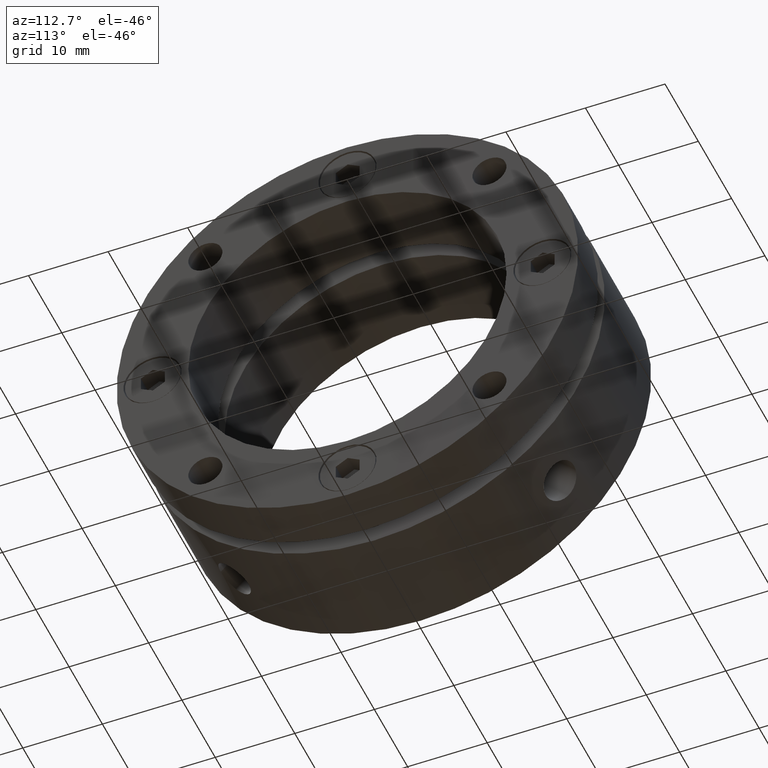
[diagram: clean part render]
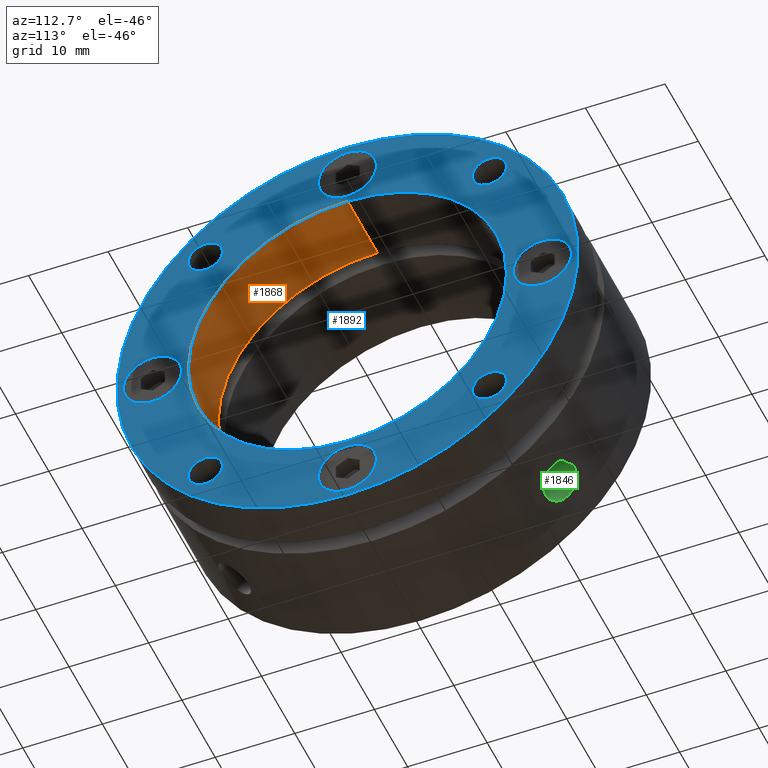
[diagram: same view with three faces highlighted in distinct colors, each labeled with its STEP entity id]
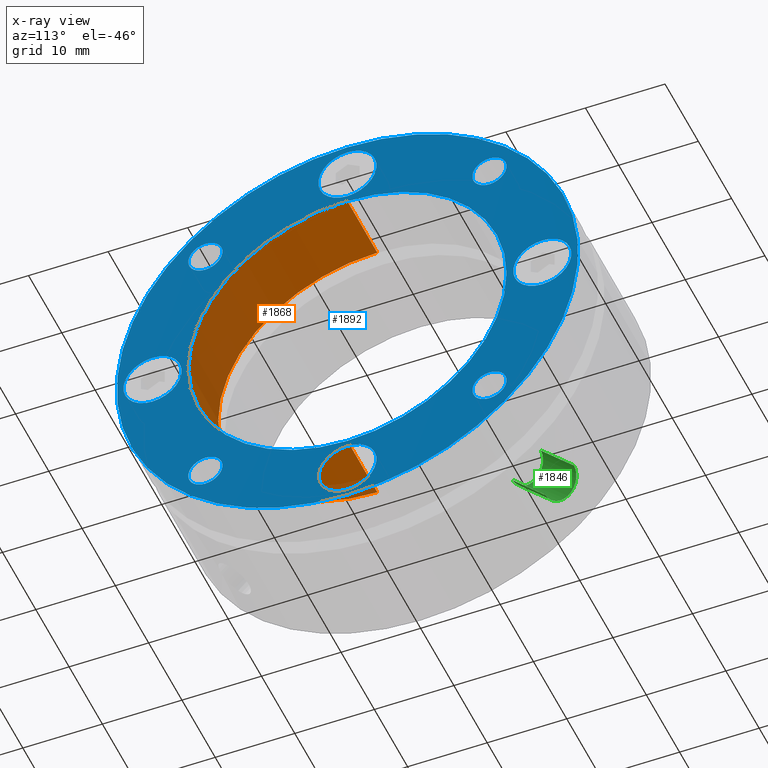
[diagram: x-ray of the same camera — body ghosted, the three highlighted faces saturated]
A machine part, auxiliary view with three faces highlighted in distinct colors.
The next image is the same camera in x-ray (body ghosted, the three faces saturated) — at least one of them is partly hidden behind the body in this view.
Their STEP definitions:

[orange] entity #1868 — the highlighted cylindrical surface (partial cylindrical patch) has radius 20 mm, axis along (1, 0, 0).
#292 = EDGE_LOOP ( 'NONE', ( #865, #846, #847, #960 ) ) ;
#373 = VERTEX_POINT ( 'NONE', #1982 ) ;
#374 = VERTEX_POINT ( 'NONE', #1983 ) ;
#378 = VERTEX_POINT ( 'NONE', #1987 ) ;
#379 = VERTEX_POINT ( 'NONE', #1988 ) ;
#688 = CIRCLE ( 'NONE', #3167, 20.00000000000000000 ) ;
#694 = CIRCLE ( 'NONE', #3169, 20.00000000000000000 ) ;
#696 = LINE ( 'NONE', #2439, #699 ) ;
#698 = LINE ( 'NONE', #2441, #701 ) ;
#699 = VECTOR ( 'NONE', #2440, 1000.000000000000000 ) ;
#701 = VECTOR ( 'NONE', #2443, 1000.000000000000000 ) ;
#846 = ORIENTED_EDGE ( 'NONE', *, *, #1012, .T. ) ;
#847 = ORIENTED_EDGE ( 'NONE', *, *, #1014, .F. ) ;
#865 = ORIENTED_EDGE ( 'NONE', *, *, #1008, .T. ) ;
#960 = ORIENTED_EDGE ( 'NONE', *, *, #1013, .F. ) ;
#1008 = EDGE_CURVE ( 'NONE', #379, #378, #688, .T. ) ;
#1012 = EDGE_CURVE ( 'NONE', #378, #373, #696, .T. ) ;
#1013 = EDGE_CURVE ( 'NONE', #379, #374, #698, .T. ) ;
#1014 = EDGE_CURVE ( 'NONE', #374, #373, #694, .T. ) ;
#1099 = AXIS2_PLACEMENT_3D ( 'NONE', #2674, #2672, #2670 ) ;
#1327 = FACE_OUTER_BOUND ( 'NONE', #292, .T. ) ;
#1336 = CYLINDRICAL_SURFACE ( 'NONE', #1099, 20.00000000000000000 ) ;
#1868 = ADVANCED_FACE ( 'NONE', ( #1327 ), #1336, .F. ) ;
#1982 = CARTESIAN_POINT ( 'NONE',  ( 21.99999999999999300, 2.449293598294706500E-015, 20.00000000000000000 ) ) ;
#1983 = CARTESIAN_POINT ( 'NONE',  ( 21.99999999999999300, 0.0000000000000000000, -20.00000000000000000 ) ) ;
#1987 = CARTESIAN_POINT ( 'NONE',  ( 13.00000000000001100, 2.449293598294706500E-015, 20.00000000000000000 ) ) ;
#1988 = CARTESIAN_POINT ( 'NONE',  ( 13.00000000000001100, 0.0000000000000000000, -20.00000000000000000 ) ) ;
#2433 = CARTESIAN_POINT ( 'NONE',  ( 13.00000000000001100, 0.0000000000000000000, 0.0000000000000000000 ) ) ;
#2434 = DIRECTION ( 'NONE',  ( -1.000000000000000000, -0.0000000000000000000, -0.0000000000000000000 ) ) ;
#2435 = DIRECTION ( 'NONE',  ( 0.0000000000000000000, 0.0000000000000000000, -1.000000000000000000 ) ) ;
#2439 = CARTESIAN_POINT ( 'NONE',  ( 10.99999999999999500, 2.449293598294706500E-015, 20.00000000000000000 ) ) ;
#2440 = DIRECTION ( 'NONE',  ( 1.000000000000000000, 0.0000000000000000000, 0.0000000000000000000 ) ) ;
#2441 = CARTESIAN_POINT ( 'NONE',  ( 10.99999999999999500, 0.0000000000000000000, -20.00000000000000000 ) ) ;
#2443 = DIRECTION ( 'NONE',  ( 1.000000000000000000, 0.0000000000000000000, 0.0000000000000000000 ) ) ;
#2445 = CARTESIAN_POINT ( 'NONE',  ( 21.99999999999999300, 0.0000000000000000000, 0.0000000000000000000 ) ) ;
#2446 = DIRECTION ( 'NONE',  ( -1.000000000000000000, -0.0000000000000000000, -0.0000000000000000000 ) ) ;
#2447 = DIRECTION ( 'NONE',  ( 0.0000000000000000000, 0.0000000000000000000, -1.000000000000000000 ) ) ;
#2670 = DIRECTION ( 'NONE',  ( 0.0000000000000000000, 0.0000000000000000000, -1.000000000000000000 ) ) ;
#2672 = DIRECTION ( 'NONE',  ( 1.000000000000000000, 0.0000000000000000000, 0.0000000000000000000 ) ) ;
#2674 = CARTESIAN_POINT ( 'NONE',  ( 10.99999999999999500, 0.0000000000000000000, 0.0000000000000000000 ) ) ;
#3167 = AXIS2_PLACEMENT_3D ( 'NONE', #2433, #2434, #2435 ) ;
#3169 = AXIS2_PLACEMENT_3D ( 'NONE', #2445, #2446, #2447 ) ;

[blue] entity #1892 — the highlighted planar face has unit normal (1, 0, 0).
#21 = EDGE_LOOP ( 'NONE', ( #910, #923 ) ) ;
#28 = EDGE_LOOP ( 'NONE', ( #925, #928 ) ) ;
#56 = EDGE_LOOP ( 'NONE', ( #933, #930 ) ) ;
#75 = EDGE_LOOP ( 'NONE', ( #924, #927 ) ) ;
#81 = EDGE_LOOP ( 'NONE', ( #920, #926 ) ) ;
#92 = EDGE_LOOP ( 'NONE', ( #918, #919 ) ) ;
#96 = EDGE_LOOP ( 'NONE', ( #929, #934 ) ) ;
#160 = EDGE_LOOP ( 'NONE', ( #861, #916 ) ) ;
#235 = EDGE_LOOP ( 'NONE', ( #945, #951 ) ) ;
#316 = EDGE_LOOP ( 'NONE', ( #912, #911 ) ) ;
#341 = VERTEX_POINT ( 'NONE', #1953 ) ;
#342 = VERTEX_POINT ( 'NONE', #1945 ) ;
#345 = VERTEX_POINT ( 'NONE', #1955 ) ;
#346 = VERTEX_POINT ( 'NONE', #1948 ) ;
#349 = VERTEX_POINT ( 'NONE', #1958 ) ;
#350 = VERTEX_POINT ( 'NONE', #1959 ) ;
#353 = VERTEX_POINT ( 'NONE', #1962 ) ;
#354 = VERTEX_POINT ( 'NONE', #1963 ) ;
#357 = VERTEX_POINT ( 'NONE', #1966 ) ;
#358 = VERTEX_POINT ( 'NONE', #1967 ) ;
#361 = VERTEX_POINT ( 'NONE', #1970 ) ;
#362 = VERTEX_POINT ( 'NONE', #1971 ) ;
#365 = VERTEX_POINT ( 'NONE', #1974 ) ;
#366 = VERTEX_POINT ( 'NONE', #1975 ) ;
#369 = VERTEX_POINT ( 'NONE', #1978 ) ;
#370 = VERTEX_POINT ( 'NONE', #1979 ) ;
#373 = VERTEX_POINT ( 'NONE', #1982 ) ;
#374 = VERTEX_POINT ( 'NONE', #1983 ) ;
#376 = VERTEX_POINT ( 'NONE', #1985 ) ;
#377 = VERTEX_POINT ( 'NONE', #1986 ) ;
#526 = AXIS2_PLACEMENT_3D ( 'NONE', #2873, #2874, #2875 ) ;
#527 = AXIS2_PLACEMENT_3D ( 'NONE', #2876, #2877, #2878 ) ;
#529 = AXIS2_PLACEMENT_3D ( 'NONE', #2882, #2883, #2884 ) ;
#531 = AXIS2_PLACEMENT_3D ( 'NONE', #2888, #2889, #2890 ) ;
#533 = AXIS2_PLACEMENT_3D ( 'NONE', #2894, #2895, #2896 ) ;
#535 = AXIS2_PLACEMENT_3D ( 'NONE', #2902, #2903, #2904 ) ;
#536 = AXIS2_PLACEMENT_3D ( 'NONE', #2905, #2906, #2907 ) ;
#537 = AXIS2_PLACEMENT_3D ( 'NONE', #2908, #2909, #2910 ) ;
#538 = AXIS2_PLACEMENT_3D ( 'NONE', #2911, #2912, #2913 ) ;
#543 = AXIS2_PLACEMENT_3D ( 'NONE', #2945, #2946, #2947 ) ;
#545 = AXIS2_PLACEMENT_3D ( 'NONE', #2955, #2956, #2957 ) ;
#581 = EDGE_CURVE ( 'NONE', #376, #377, #617, .T. ) ;
#617 = CIRCLE ( 'NONE', #3122, 29.00000000000000400 ) ;
#662 = CIRCLE ( 'NONE', #3146, 3.649999999999999900 ) ;
#678 = CIRCLE ( 'NONE', #3160, 2.149999999999999000 ) ;
#694 = CIRCLE ( 'NONE', #3169, 20.00000000000000000 ) ;
#702 = CIRCLE ( 'NONE', #3171, 3.650000000000000400 ) ;
#706 = CIRCLE ( 'NONE', #3174, 29.00000000000000400 ) ;
#861 = ORIENTED_EDGE ( 'NONE', *, *, #3065, .T. ) ;
#910 = ORIENTED_EDGE ( 'NONE', *, *, #1016, .T. ) ;
#911 = ORIENTED_EDGE ( 'NONE', *, *, #3016, .T. ) ;
#912 = ORIENTED_EDGE ( 'NONE', *, *, #1014, .T. ) ;
#916 = ORIENTED_EDGE ( 'NONE', *, *, #3037, .T. ) ;
#918 = ORIENTED_EDGE ( 'NONE', *, *, #581, .F. ) ;
#919 = ORIENTED_EDGE ( 'NONE', *, *, #1018, .F. ) ;
#920 = ORIENTED_EDGE ( 'NONE', *, *, #3460, .T. ) ;
#923 = ORIENTED_EDGE ( 'NONE', *, *, #3017, .T. ) ;
#924 = ORIENTED_EDGE ( 'NONE', *, *, #990, .T. ) ;
#925 = ORIENTED_EDGE ( 'NONE', *, *, #3465, .T. ) ;
#926 = ORIENTED_EDGE ( 'NONE', *, *, #3021, .T. ) ;
#927 = ORIENTED_EDGE ( 'NONE', *, *, #3028, .T. ) ;
#928 = ORIENTED_EDGE ( 'NONE', *, *, #3025, .T. ) ;
#929 = ORIENTED_EDGE ( 'NONE', *, *, #1001, .T. ) ;
#930 = ORIENTED_EDGE ( 'NONE', *, *, #3035, .T. ) ;
#933 = ORIENTED_EDGE ( 'NONE', *, *, #3079, .T. ) ;
#934 = ORIENTED_EDGE ( 'NONE', *, *, #3032, .T. ) ;
#945 = ORIENTED_EDGE ( 'NONE', *, *, #3071, .T. ) ;
#951 = ORIENTED_EDGE ( 'NONE', *, *, #3036, .T. ) ;
#990 = EDGE_CURVE ( 'NONE', #358, #357, #662, .T. ) ;
#1001 = EDGE_CURVE ( 'NONE', #354, #353, #678, .T. ) ;
#1014 = EDGE_CURVE ( 'NONE', #374, #373, #694, .T. ) ;
#1016 = EDGE_CURVE ( 'NONE', #370, #369, #702, .T. ) ;
#1018 = EDGE_CURVE ( 'NONE', #377, #376, #706, .T. ) ;
#1121 = AXIS2_PLACEMENT_3D ( 'NONE', #2746, #2742, #2748 ) ;
#1375 = FACE_BOUND ( 'NONE', #316, .T. ) ;
#1377 = FACE_BOUND ( 'NONE', #28, .T. ) ;
#1379 = FACE_BOUND ( 'NONE', #81, .T. ) ;
#1381 = FACE_BOUND ( 'NONE', #75, .T. ) ;
#1383 = FACE_BOUND ( 'NONE', #21, .T. ) ;
#1384 = FACE_BOUND ( 'NONE', #96, .T. ) ;
#1385 = FACE_BOUND ( 'NONE', #56, .T. ) ;
#1386 = FACE_BOUND ( 'NONE', #235, .T. ) ;
#1387 = FACE_BOUND ( 'NONE', #160, .T. ) ;
#1388 = FACE_OUTER_BOUND ( 'NONE', #92, .T. ) ;
#1487 = CIRCLE ( 'NONE', #526, 20.00000000000000000 ) ;
#1488 = CIRCLE ( 'NONE', #527, 3.650000000000000400 ) ;
#1490 = CIRCLE ( 'NONE', #529, 3.649999999999999900 ) ;
#1491 = CIRCLE ( 'NONE', #531, 3.650000000000000400 ) ;
#1493 = CIRCLE ( 'NONE', #533, 3.649999999999999900 ) ;
#1494 = CIRCLE ( 'NONE', #537, 2.149999999999999000 ) ;
#1496 = CIRCLE ( 'NONE', #535, 2.149999999999999000 ) ;
#1497 = CIRCLE ( 'NONE', #536, 2.149999999999999000 ) ;
#1498 = CIRCLE ( 'NONE', #538, 2.149999999999999000 ) ;
#1513 = CIRCLE ( 'NONE', #543, 2.149999999999999000 ) ;
#1524 = CIRCLE ( 'NONE', #545, 2.149999999999999000 ) ;
#1530 = CIRCLE ( 'NONE', #3471, 2.149999999999999000 ) ;
#1588 = CIRCLE ( 'NONE', #3478, 3.649999999999999900 ) ;
#1607 = CIRCLE ( 'NONE', #3480, 3.650000000000000400 ) ;
#1892 = ADVANCED_FACE ( 'NONE', ( #1375, #1383, #1379, #1377, #1381, #1384, #1385, #1386, #1387, #1388 ), #2744, .T. ) ;
#1945 = CARTESIAN_POINT ( 'NONE',  ( 21.99999999999999300, 17.85444622496033800, 15.70444622496033200 ) ) ;
#1948 = CARTESIAN_POINT ( 'NONE',  ( 21.99999999999999300, 17.85444622496033100, -20.00444622496033300 ) ) ;
#1953 = CARTESIAN_POINT ( 'NONE',  ( 21.99999999999999300, 17.85444622496033800, 20.00444622496032900 ) ) ;
#1955 = CARTESIAN_POINT ( 'NONE',  ( 21.99999999999999300, 17.85444622496033100, -15.70444622496033600 ) ) ;
#1958 = CARTESIAN_POINT ( 'NONE',  ( 21.99999999999999300, -17.85444622496033400, -15.70444622496033200 ) ) ;
#1959 = CARTESIAN_POINT ( 'NONE',  ( 21.99999999999999300, -17.85444622496033400, -20.00444622496032900 ) ) ;
#1962 = CARTESIAN_POINT ( 'NONE',  ( 21.99999999999999300, -17.85444622496033100, 20.00444622496033300 ) ) ;
#1963 = CARTESIAN_POINT ( 'NONE',  ( 21.99999999999999300, -17.85444622496033100, 15.70444622496033600 ) ) ;
#1966 = CARTESIAN_POINT ( 'NONE',  ( 21.99999999999999300, 24.50000000000001100, 3.649999999999995900 ) ) ;
#1967 = CARTESIAN_POINT ( 'NONE',  ( 21.99999999999999300, 24.50000000000001100, -3.650000000000004400 ) ) ;
#1970 = CARTESIAN_POINT ( 'NONE',  ( 21.99999999999999300, -2.553388918311216100E-015, -20.85000000000001200 ) ) ;
#1971 = CARTESIAN_POINT ( 'NONE',  ( 21.99999999999999300, -3.000384999999999900E-015, -28.15000000000001300 ) ) ;
#1974 = CARTESIAN_POINT ( 'NONE',  ( 21.99999999999999300, -24.50000000000001100, 3.650000000000001200 ) ) ;
#1975 = CARTESIAN_POINT ( 'NONE',  ( 21.99999999999999300, -24.50000000000001100, -3.649999999999998600 ) ) ;
#1978 = CARTESIAN_POINT ( 'NONE',  ( 21.99999999999999300, 4.469960816887838400E-016, 28.15000000000001300 ) ) ;
#1979 = CARTESIAN_POINT ( 'NONE',  ( 21.99999999999999300, 0.0000000000000000000, 20.85000000000001200 ) ) ;
#1982 = CARTESIAN_POINT ( 'NONE',  ( 21.99999999999999300, 2.449293598294706500E-015, 20.00000000000000000 ) ) ;
#1983 = CARTESIAN_POINT ( 'NONE',  ( 21.99999999999999300, 0.0000000000000000000, -20.00000000000000000 ) ) ;
#1985 = CARTESIAN_POINT ( 'NONE',  ( 21.99999999999999300, 0.0000000000000000000, -29.00000000000000400 ) ) ;
#1986 = CARTESIAN_POINT ( 'NONE',  ( 21.99999999999999300, 3.551475717527324800E-015, 29.00000000000000400 ) ) ;
#2220 = CARTESIAN_POINT ( 'NONE',  ( 21.99999999999999300, 0.0000000000000000000, 0.0000000000000000000 ) ) ;
#2221 = DIRECTION ( 'NONE',  ( -1.000000000000000000, -0.0000000000000000000, -0.0000000000000000000 ) ) ;
#2222 = DIRECTION ( 'NONE',  ( 0.0000000000000000000, 0.0000000000000000000, -1.000000000000000000 ) ) ;
#2386 = CARTESIAN_POINT ( 'NONE',  ( 21.99999999999999300, 24.50000000000001100, -4.500577000000000000E-015 ) ) ;
#2387 = DIRECTION ( 'NONE',  ( -1.000000000000000000, -0.0000000000000000000, -0.0000000000000000000 ) ) ;
#2388 = DIRECTION ( 'NONE',  ( 0.0000000000000000000, 0.0000000000000000000, -1.000000000000000000 ) ) ;
#2415 = CARTESIAN_POINT ( 'NONE',  ( 21.99999999999999300, -17.85444622496033100, 17.85444622496033400 ) ) ;
#2416 = DIRECTION ( 'NONE',  ( -1.000000000000000000, -0.0000000000000000000, -0.0000000000000000000 ) ) ;
#2417 = DIRECTION ( 'NONE',  ( 0.0000000000000000000, 0.0000000000000000000, -1.000000000000000000 ) ) ;
#2445 = CARTESIAN_POINT ( 'NONE',  ( 21.99999999999999300, 0.0000000000000000000, 0.0000000000000000000 ) ) ;
#2446 = DIRECTION ( 'NONE',  ( -1.000000000000000000, -0.0000000000000000000, -0.0000000000000000000 ) ) ;
#2447 = DIRECTION ( 'NONE',  ( 0.0000000000000000000, 0.0000000000000000000, -1.000000000000000000 ) ) ;
#2451 = CARTESIAN_POINT ( 'NONE',  ( 21.99999999999999300, 0.0000000000000000000, 24.50000000000001100 ) ) ;
#2452 = DIRECTION ( 'NONE',  ( -1.000000000000000000, -0.0000000000000000000, -0.0000000000000000000 ) ) ;
#2453 = DIRECTION ( 'NONE',  ( 0.0000000000000000000, 0.0000000000000000000, -1.000000000000000000 ) ) ;
#2455 = CARTESIAN_POINT ( 'NONE',  ( 21.99999999999999300, 0.0000000000000000000, 0.0000000000000000000 ) ) ;
#2456 = DIRECTION ( 'NONE',  ( -1.000000000000000000, -0.0000000000000000000, -0.0000000000000000000 ) ) ;
#2457 = DIRECTION ( 'NONE',  ( 0.0000000000000000000, 0.0000000000000000000, -1.000000000000000000 ) ) ;
#2742 = DIRECTION ( 'NONE',  ( 1.000000000000000000, -0.0000000000000000000, 0.0000000000000000000 ) ) ;
#2744 = PLANE ( 'NONE',  #1121 ) ;
#2746 = CARTESIAN_POINT ( 'NONE',  ( 21.99999999999999300, 24.50000000000000000, 0.0000000000000000000 ) ) ;
#2748 = DIRECTION ( 'NONE',  ( 0.0000000000000000000, 0.0000000000000000000, -1.000000000000000000 ) ) ;
#2873 = CARTESIAN_POINT ( 'NONE',  ( 21.99999999999999300, 0.0000000000000000000, 0.0000000000000000000 ) ) ;
#2874 = DIRECTION ( 'NONE',  ( -1.000000000000000000, -0.0000000000000000000, -0.0000000000000000000 ) ) ;
#2875 = DIRECTION ( 'NONE',  ( 0.0000000000000000000, 0.0000000000000000000, -1.000000000000000000 ) ) ;
#2876 = CARTESIAN_POINT ( 'NONE',  ( 21.99999999999999300, 0.0000000000000000000, 24.50000000000001100 ) ) ;
#2877 = DIRECTION ( 'NONE',  ( -1.000000000000000000, -0.0000000000000000000, -0.0000000000000000000 ) ) ;
#2878 = DIRECTION ( 'NONE',  ( 0.0000000000000000000, 0.0000000000000000000, -1.000000000000000000 ) ) ;
#2882 = CARTESIAN_POINT ( 'NONE',  ( 21.99999999999999300, -24.50000000000001100, 1.500192000000000300E-015 ) ) ;
#2883 = DIRECTION ( 'NONE',  ( -1.000000000000000000, -0.0000000000000000000, -0.0000000000000000000 ) ) ;
#2884 = DIRECTION ( 'NONE',  ( 0.0000000000000000000, 0.0000000000000000000, -1.000000000000000000 ) ) ;
#2888 = CARTESIAN_POINT ( 'NONE',  ( 21.99999999999999300, -3.000384999999999900E-015, -24.50000000000001100 ) ) ;
#2889 = DIRECTION ( 'NONE',  ( -1.000000000000000000, -0.0000000000000000000, -0.0000000000000000000 ) ) ;
#2890 = DIRECTION ( 'NONE',  ( 0.0000000000000000000, 0.0000000000000000000, -1.000000000000000000 ) ) ;
#2894 = CARTESIAN_POINT ( 'NONE',  ( 21.99999999999999300, 24.50000000000001100, -4.500577000000000000E-015 ) ) ;
#2895 = DIRECTION ( 'NONE',  ( -1.000000000000000000, -0.0000000000000000000, -0.0000000000000000000 ) ) ;
#2896 = DIRECTION ( 'NONE',  ( 0.0000000000000000000, 0.0000000000000000000, -1.000000000000000000 ) ) ;
#2902 = CARTESIAN_POINT ( 'NONE',  ( 21.99999999999999300, -17.85444622496033100, 17.85444622496033400 ) ) ;
#2903 = DIRECTION ( 'NONE',  ( -1.000000000000000000, -0.0000000000000000000, -0.0000000000000000000 ) ) ;
#2904 = DIRECTION ( 'NONE',  ( 0.0000000000000000000, 0.0000000000000000000, -1.000000000000000000 ) ) ;
#2905 = CARTESIAN_POINT ( 'NONE',  ( 21.99999999999999300, -17.85444622496033400, -17.85444622496033100 ) ) ;
#2906 = DIRECTION ( 'NONE',  ( -1.000000000000000000, -0.0000000000000000000, -0.0000000000000000000 ) ) ;
#2907 = DIRECTION ( 'NONE',  ( 0.0000000000000000000, 0.0000000000000000000, -1.000000000000000000 ) ) ;
#2908 = CARTESIAN_POINT ( 'NONE',  ( 21.99999999999999300, 17.85444622496033100, -17.85444622496033400 ) ) ;
#2909 = DIRECTION ( 'NONE',  ( -1.000000000000000000, -0.0000000000000000000, -0.0000000000000000000 ) ) ;
#2910 = DIRECTION ( 'NONE',  ( 0.0000000000000000000, 0.0000000000000000000, -1.000000000000000000 ) ) ;
#2911 = CARTESIAN_POINT ( 'NONE',  ( 21.99999999999999300, 17.85444622496033800, 17.85444622496033100 ) ) ;
#2912 = DIRECTION ( 'NONE',  ( -1.000000000000000000, -0.0000000000000000000, -0.0000000000000000000 ) ) ;
#2913 = DIRECTION ( 'NONE',  ( 0.0000000000000000000, 0.0000000000000000000, -1.000000000000000000 ) ) ;
#2945 = CARTESIAN_POINT ( 'NONE',  ( 21.99999999999999300, 17.85444622496033800, 17.85444622496033100 ) ) ;
#2946 = DIRECTION ( 'NONE',  ( -1.000000000000000000, -0.0000000000000000000, -0.0000000000000000000 ) ) ;
#2947 = DIRECTION ( 'NONE',  ( 0.0000000000000000000, 0.0000000000000000000, -1.000000000000000000 ) ) ;
#2955 = CARTESIAN_POINT ( 'NONE',  ( 21.99999999999999300, 17.85444622496033100, -17.85444622496033400 ) ) ;
#2956 = DIRECTION ( 'NONE',  ( -1.000000000000000000, -0.0000000000000000000, -0.0000000000000000000 ) ) ;
#2957 = DIRECTION ( 'NONE',  ( 0.0000000000000000000, 0.0000000000000000000, -1.000000000000000000 ) ) ;
#2964 = CARTESIAN_POINT ( 'NONE',  ( 21.99999999999999300, -17.85444622496033400, -17.85444622496033100 ) ) ;
#2965 = DIRECTION ( 'NONE',  ( -1.000000000000000000, -0.0000000000000000000, -0.0000000000000000000 ) ) ;
#2966 = DIRECTION ( 'NONE',  ( 0.0000000000000000000, 0.0000000000000000000, -1.000000000000000000 ) ) ;
#3016 = EDGE_CURVE ( 'NONE', #373, #374, #1487, .T. ) ;
#3017 = EDGE_CURVE ( 'NONE', #369, #370, #1488, .T. ) ;
#3021 = EDGE_CURVE ( 'NONE', #365, #366, #1490, .T. ) ;
#3025 = EDGE_CURVE ( 'NONE', #361, #362, #1491, .T. ) ;
#3028 = EDGE_CURVE ( 'NONE', #357, #358, #1493, .T. ) ;
#3032 = EDGE_CURVE ( 'NONE', #353, #354, #1496, .T. ) ;
#3035 = EDGE_CURVE ( 'NONE', #349, #350, #1497, .T. ) ;
#3036 = EDGE_CURVE ( 'NONE', #345, #346, #1494, .T. ) ;
#3037 = EDGE_CURVE ( 'NONE', #341, #342, #1498, .T. ) ;
#3065 = EDGE_CURVE ( 'NONE', #342, #341, #1513, .T. ) ;
#3071 = EDGE_CURVE ( 'NONE', #346, #345, #1524, .T. ) ;
#3072 = CARTESIAN_POINT ( 'NONE',  ( 21.99999999999999300, -24.50000000000001100, 1.500192000000000300E-015 ) ) ;
#3073 = DIRECTION ( 'NONE',  ( -1.000000000000000000, -0.0000000000000000000, -0.0000000000000000000 ) ) ;
#3075 = DIRECTION ( 'NONE',  ( 0.0000000000000000000, 0.0000000000000000000, -1.000000000000000000 ) ) ;
#3079 = EDGE_CURVE ( 'NONE', #350, #349, #1530, .T. ) ;
#3097 = CARTESIAN_POINT ( 'NONE',  ( 21.99999999999999300, -3.000384999999999900E-015, -24.50000000000001100 ) ) ;
#3099 = DIRECTION ( 'NONE',  ( -1.000000000000000000, -0.0000000000000000000, -0.0000000000000000000 ) ) ;
#3100 = DIRECTION ( 'NONE',  ( 0.0000000000000000000, 0.0000000000000000000, -1.000000000000000000 ) ) ;
#3122 = AXIS2_PLACEMENT_3D ( 'NONE', #2220, #2221, #2222 ) ;
#3146 = AXIS2_PLACEMENT_3D ( 'NONE', #2386, #2387, #2388 ) ;
#3160 = AXIS2_PLACEMENT_3D ( 'NONE', #2415, #2416, #2417 ) ;
#3169 = AXIS2_PLACEMENT_3D ( 'NONE', #2445, #2446, #2447 ) ;
#3171 = AXIS2_PLACEMENT_3D ( 'NONE', #2451, #2452, #2453 ) ;
#3174 = AXIS2_PLACEMENT_3D ( 'NONE', #2455, #2456, #2457 ) ;
#3460 = EDGE_CURVE ( 'NONE', #366, #365, #1588, .T. ) ;
#3465 = EDGE_CURVE ( 'NONE', #362, #361, #1607, .T. ) ;
#3471 = AXIS2_PLACEMENT_3D ( 'NONE', #2964, #2965, #2966 ) ;
#3478 = AXIS2_PLACEMENT_3D ( 'NONE', #3072, #3073, #3075 ) ;
#3480 = AXIS2_PLACEMENT_3D ( 'NONE', #3097, #3099, #3100 ) ;

[green] entity #1846 — the highlighted cylindrical surface (edge-blend (fillet) strip) has radius 2.5 mm, axis along (0, 0.7071, -0.7071).
#106 = ORIENTED_EDGE ( 'NONE', *, *, #3553, .F. ) ;
#107 = ORIENTED_EDGE ( 'NONE', *, *, #556, .F. ) ;
#108 = ORIENTED_EDGE ( 'NONE', *, *, #3544, .T. ) ;
#109 = ORIENTED_EDGE ( 'NONE', *, *, #3554, .F. ) ;
#314 = EDGE_LOOP ( 'NONE', ( #109, #108, #107, #106 ) ) ;
#448 = VERTEX_POINT ( 'NONE', #2057 ) ;
#451 = VERTEX_POINT ( 'NONE', #2060 ) ;
#460 = VERTEX_POINT ( 'NONE', #2069 ) ;
#469 = VERTEX_POINT ( 'NONE', #2078 ) ;
#556 = EDGE_CURVE ( 'NONE', #469, #460, #1055, .T. ) ;
#1055 = B_SPLINE_CURVE_WITH_KNOTS ( 'NONE', 3,
 ( #2146, #2147, #2152, #2153, #2154, #2155, #2156, #2157, #2158, #2159, #2160, #2161, #2162, #2163, #2164, #2165, #2166, #2167, #2168, #2169, #2170, #2171, #2172, #2173, #2174, #2175, #2176, #2177, #2178, #2179, #2180, #2181, #2182, #2183 ),
 .UNSPECIFIED., .F., .F.,
 ( 4, 2, 2, 2, 2, 2, 2, 2, 2, 2, 2, 2, 2, 2, 2, 2, 4 ),
 ( 0.01172885886875083200, 0.01221748855719005500, 0.01270611824562928000, 0.01319474793406850300, 0.01368337762250772600, 0.01417200731094694900, 0.01466063699938617400, 0.01514926668782539700, 0.01563789637626462200, 0.01612652606470384500, 0.01661515575314306800, 0.01710378544158229100, 0.01759241513002151500, 0.01808104481846074100, 0.01856967450689996400, 0.01905830419533918700, 0.01954693388377841100 ),
 .UNSPECIFIED. ) ;
#1077 = AXIS2_PLACEMENT_3D ( 'NONE', #2608, #2606, #2604 ) ;
#1284 = FACE_OUTER_BOUND ( 'NONE', #314, .T. ) ;
#1292 = CYLINDRICAL_SURFACE ( 'NONE', #1077, 2.499999999999998700 ) ;
#1631 = LINE ( 'NONE', #3228, #1633 ) ;
#1633 = VECTOR ( 'NONE', #3229, 1000.000000000000000 ) ;
#1638 = CIRCLE ( 'NONE', #3493, 2.500000000000000000 ) ;
#1645 = LINE ( 'NONE', #3258, #1646 ) ;
#1646 = VECTOR ( 'NONE', #3259, 1000.000000000000000 ) ;
#1846 = ADVANCED_FACE ( 'NONE', ( #1284 ), #1292, .F. ) ;
#2057 = CARTESIAN_POINT ( 'NONE',  ( 6.999999999999992900, 18.03122291790290200, -14.49568901667829300 ) ) ;
#2060 = CARTESIAN_POINT ( 'NONE',  ( 6.999999999999992900, 14.49568901667828900, -18.03122291790289800 ) ) ;
#2069 = CARTESIAN_POINT ( 'NONE',  ( 6.999999999999992900, 18.66199075484798400, -22.19752466078072900 ) ) ;
#2078 = CARTESIAN_POINT ( 'NONE',  ( 6.999999999999992900, 22.19752466078072200, -18.66199075484799200 ) ) ;
#2146 = CARTESIAN_POINT ( 'NONE',  ( 6.999999999999992900, 22.19752466078072200, -18.66199075484799200 ) ) ;
#2147 = CARTESIAN_POINT ( 'NONE',  ( 6.836889293315132400, 22.19752466078071900, -18.66199075484798800 ) ) ;
#2152 = CARTESIAN_POINT ( 'NONE',  ( 6.671209411699219800, 22.18698607935332100, -18.67454627982972300 ) ) ;
#2153 = CARTESIAN_POINT ( 'NONE',  ( 6.350602221593687700, 22.14559756433346700, -18.72360912221539000 ) ) ;
#2154 = CARTESIAN_POINT ( 'NONE',  ( 6.194766286574620500, 22.11497340511872200, -18.75984821444914600 ) ) ;
#2155 = CARTESIAN_POINT ( 'NONE',  ( 5.892077017659619100, 22.03341440721714100, -18.85557220818597900 ) ) ;
#2156 = CARTESIAN_POINT ( 'NONE',  ( 5.745830729501783200, 21.98232687178327200, -18.91521975453383000 ) ) ;
#2157 = CARTESIAN_POINT ( 'NONE',  ( 5.475107132603087100, 21.86353243827018000, -19.05240620973999900 ) ) ;
#2158 = CARTESIAN_POINT ( 'NONE',  ( 5.348899357913803800, 21.79542242833628800, -19.13042679679525900 ) ) ;
#2159 = CARTESIAN_POINT ( 'NONE',  ( 5.115517966158140700, 21.64047073392180200, -19.30553533760306100 ) ) ;
#2160 = CARTESIAN_POINT ( 'NONE',  ( 5.012136730428754700, 21.55612772977841400, -19.39978651902036000 ) ) ;
#2161 = CARTESIAN_POINT ( 'NONE',  ( 4.831177672506670200, 21.37390565747478300, -19.60037031873259000 ) ) ;
#2162 = CARTESIAN_POINT ( 'NONE',  ( 4.752923106869284100, 21.27482800575629100, -19.70798420472281300 ) ) ;
#2163 = CARTESIAN_POINT ( 'NONE',  ( 4.627524710443264400, 21.06777683135185000, -19.92916775664428600 ) ) ;
#2164 = CARTESIAN_POINT ( 'NONE',  ( 4.580265046816364800, 20.96038554305367900, -20.04215347677030200 ) ) ;
#2165 = CARTESIAN_POINT ( 'NONE',  ( 4.516342887760563600, 20.73762049845395300, -20.27256210156900800 ) ) ;
#2166 = CARTESIAN_POINT ( 'NONE',  ( 4.499883565422372600, 20.62167052778379200, -20.39053697614957300 ) ) ;
#2167 = CARTESIAN_POINT ( 'NONE',  ( 4.500117689778695900, 20.38801750899700600, -20.62416145168139200 ) ) ;
#2168 = CARTESIAN_POINT ( 'NONE',  ( 4.516447802042619300, 20.27215593875855900, -20.73801408011930600 ) ) ;
#2169 = CARTESIAN_POINT ( 'NONE',  ( 4.580206628080247800, 20.04239206593742400, -20.96015397528889000 ) ) ;
#2170 = CARTESIAN_POINT ( 'NONE',  ( 4.628416924226098800, 19.92726727274733600, -21.06957362854537800 ) ) ;
#2171 = CARTESIAN_POINT ( 'NONE',  ( 4.754105446092657900, 19.70623094034710500, -21.27645120723633800 ) ) ;
#2172 = CARTESIAN_POINT ( 'NONE',  ( 4.830982297680537700, 19.60056917450993600, -21.37372611167655400 ) ) ;
#2173 = CARTESIAN_POINT ( 'NONE',  ( 5.012565598953405500, 19.39932887028400200, -21.55654237683489800 ) ) ;
#2174 = CARTESIAN_POINT ( 'NONE',  ( 5.118178343002605300, 19.30341673895289000, -21.64235231917999900 ) ) ;
#2175 = CARTESIAN_POINT ( 'NONE',  ( 5.348833087511976300, 19.13060039567769600, -21.79526187514384700 ) ) ;
#2176 = CARTESIAN_POINT ( 'NONE',  ( 5.474693285963685000, 19.05255251492174700, -21.86340826021076800 ) ) ;
#2177 = CARTESIAN_POINT ( 'NONE',  ( 5.748046894809351500, 18.91416056203410200, -21.98324153349767200 ) ) ;
#2178 = CARTESIAN_POINT ( 'NONE',  ( 5.893454299515426900, 18.85511098082234600, -22.03380790690972500 ) ) ;
#2179 = CARTESIAN_POINT ( 'NONE',  ( 6.194281383739776100, 18.76002730759315900, -22.11482028857760400 ) ) ;
#2180 = CARTESIAN_POINT ( 'NONE',  ( 6.351927524470921700, 18.72328271223128500, -22.14587360183627100 ) ) ;
#2181 = CARTESIAN_POINT ( 'NONE',  ( 6.674643550635283700, 18.67414618415509900, -22.18732289852592700 ) ) ;
#2182 = CARTESIAN_POINT ( 'NONE',  ( 6.836889045201711900, 18.66199075484798400, -22.19752466078072900 ) ) ;
#2183 = CARTESIAN_POINT ( 'NONE',  ( 6.999999999999992900, 18.66199075484798400, -22.19752466078072900 ) ) ;
#2604 = DIRECTION ( 'NONE',  ( 0.0000000000000000000, 0.7071067811865482400, 0.7071067811865468000 ) ) ;
#2606 = DIRECTION ( 'NONE',  ( 0.0000000000000000000, 0.7071067811865470200, -0.7071067811865480200 ) ) ;
#2608 = CARTESIAN_POINT ( 'NONE',  ( 6.999999999999992900, 18.38477631085023500, -18.38477631085023800 ) ) ;
#3228 = CARTESIAN_POINT ( 'NONE',  ( 6.999999999999992900, 16.61700935788386600, -20.15254326381660700 ) ) ;
#3229 = DIRECTION ( 'NONE',  ( 0.0000000000000000000, 0.7071067811865470200, -0.7071067811865480200 ) ) ;
#3258 = CARTESIAN_POINT ( 'NONE',  ( 6.999999999999992900, 20.15254326381660700, -16.61700935788387300 ) ) ;
#3259 = DIRECTION ( 'NONE',  ( 0.0000000000000000000, 0.7071067811865470200, -0.7071067811865480200 ) ) ;
#3268 = CARTESIAN_POINT ( 'NONE',  ( 6.999999999999992900, 16.26345596729059300, -16.26345596729059700 ) ) ;
#3269 = DIRECTION ( 'NONE',  ( 0.0000000000000000000, 0.7071067811865470200, -0.7071067811865480200 ) ) ;
#3270 = DIRECTION ( 'NONE',  ( 0.0000000000000000000, 0.7071067811865477900, 0.7071067811865471300 ) ) ;
#3493 = AXIS2_PLACEMENT_3D ( 'NONE', #3268, #3269, #3270 ) ;
#3544 = EDGE_CURVE ( 'NONE', #451, #460, #1631, .T. ) ;
#3553 = EDGE_CURVE ( 'NONE', #448, #469, #1645, .T. ) ;
#3554 = EDGE_CURVE ( 'NONE', #451, #448, #1638, .T. ) ;